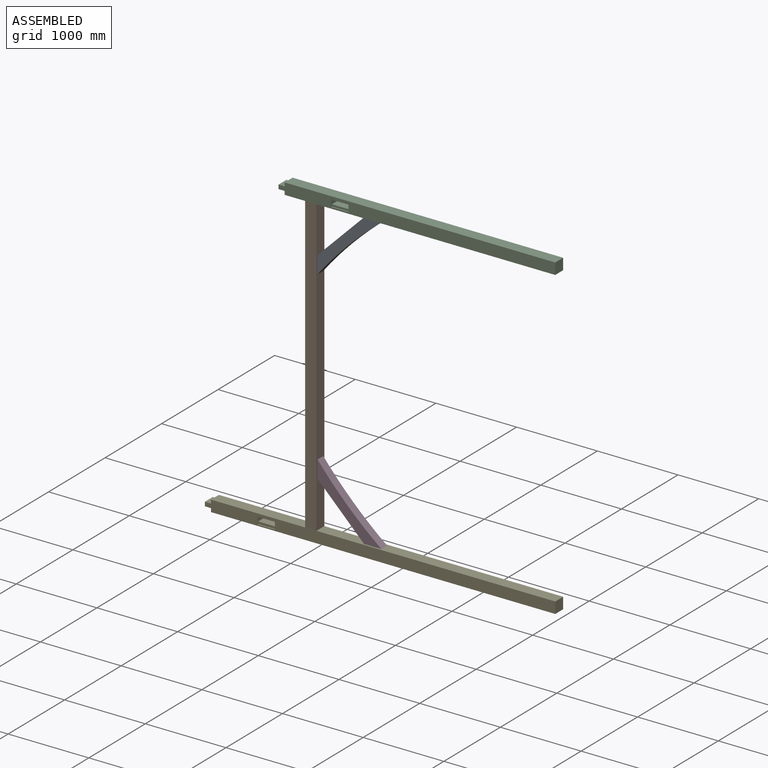
[diagram: assembled view]
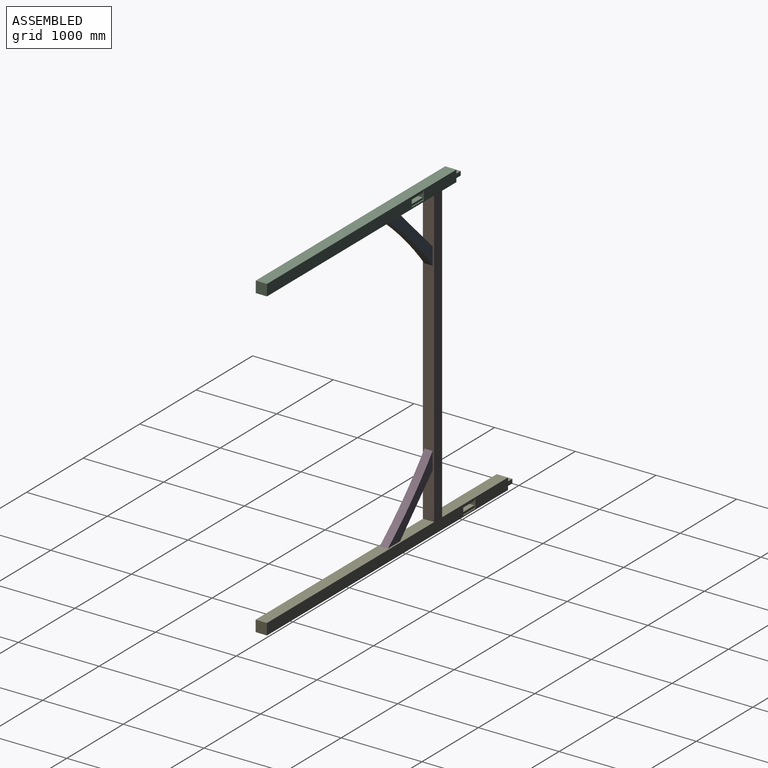
[diagram: assembled view, second angle]
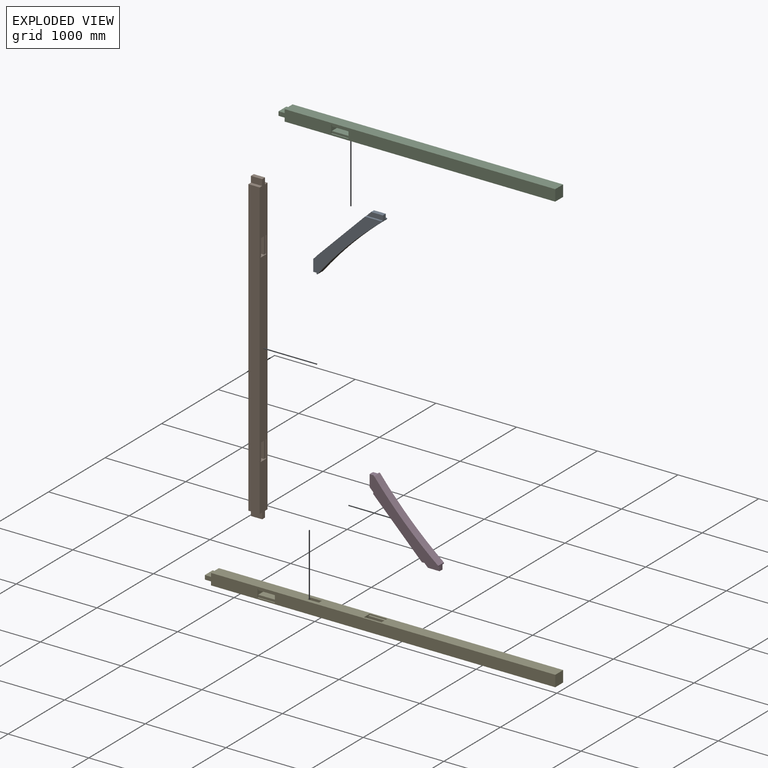
[diagram: exploded view]
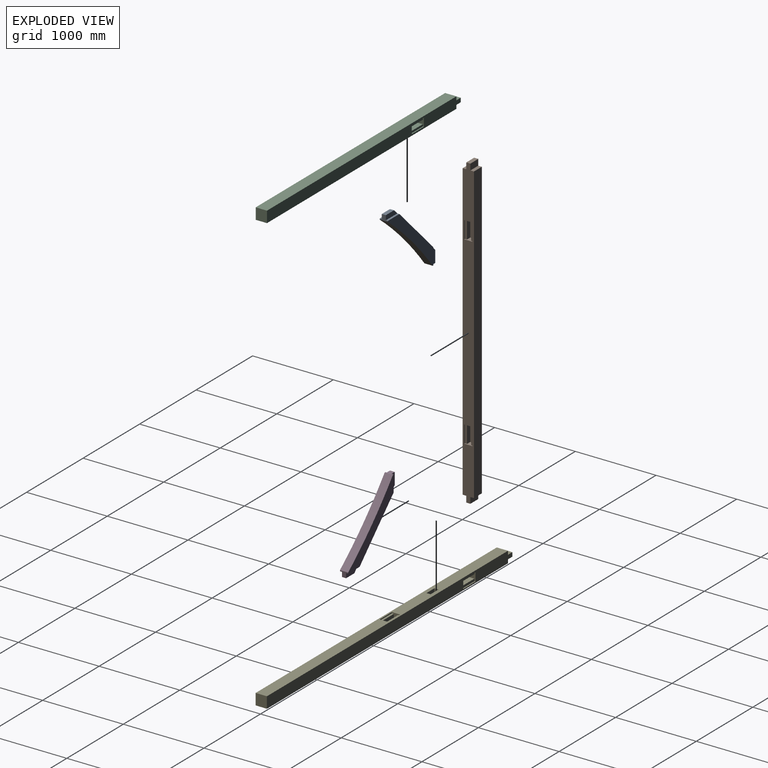
[diagram: exploded view, second angle]
ASSEMBLY  parts=5 mates=4
PART A: 16 faces, bbox 1218.6x101.6x152.4 mm
  f0: plane 101.6x49.39mm, normal (-0.71,0,-0.71), area 4193.5mm2, adj f1,f4,f5,f7,f10,f11,f12,f13
  f1: plane 1137.74x152.4mm, normal (0,-1,0), area 129225.2mm2, adj f0,f2,f3,f5,f12,f14
  f2: plane 1012.54x101.6mm, normal (0,0,1), area 95386mm2, adj f1,f4,f6,f7,f8,f9,f10,f11
  f3: plane 101.6x49.39mm, normal (0.71,0,-0.71), area 4704.8mm2, adj f1,f4,f5,f6,f8,f9,f14,f15
  f4: plane 1137.74x152.4mm, normal (0,1,0), area 129225.2mm2, adj f0,f2,f3,f5,f8,f10
  f5: cylinder r=4994.47mm len=1119.78mm, axis (0,1,0), area 114009.2mm2, adj f0,f1,f3,f4
  f6: plane 103.01x103.01mm, normal (0.71,0,0.71), area 8703.5mm2, adj f2,f3,f9,f15
  f7: plane 103.01x103.01mm, normal (-0.71,0,0.71), area 7400.3mm2, adj f0,f2,f11,f13
  f8: plane 143.42x143.42mm, normal (0.71,0,0.71), area 5151.8mm2, adj f2,f3,f4,f9
  f9: plane 183.83x143.42mm, normal (0,1,0), area 9958.5mm2, adj f2,f3,f6,f8
  f10: plane 143.42x143.42mm, normal (-0.71,0,0.71), area 5151.8mm2, adj f0,f2,f4,f11
  f11: plane 183.83x143.42mm, normal (0,1,0), area 9958.5mm2, adj f0,f2,f7,f10
  f12: plane 143.42x143.42mm, normal (-0.71,0,0.71), area 5151.8mm2, adj f0,f1,f2,f13
  f13: plane 183.83x143.42mm, normal (0,-1,0), area 9958.5mm2, adj f0,f2,f7,f12
  f14: plane 143.42x143.42mm, normal (0.71,0,0.71), area 3337.3mm2, adj f1,f2,f3,f15
  f15: plane 183.83x143.42mm, normal (0,-1,0), area 9958.5mm2, adj f2,f3,f6,f14
PART B: 32 faces, bbox 3810x139.7x139.7 mm
  f0: plane 139.7x76.2mm, normal (0,0,-1), area 10645.1mm2, adj f1,f19,f20,f21
  f1: plane 139.7x50.8mm, normal (1,0,0), area 7096.8mm2, adj f0,f2,f20,f21
  f2: plane 139.7x76.2mm, normal (0,0,1), area 10645.1mm2, adj f1,f3,f20,f21
  f3: plane 139.7x44.45mm, normal (1,0,0), area 6209.7mm2, adj f2,f4,f20,f21
  f4: plane 3657.6x139.7mm, normal (0,0,1), area 510966.7mm2, adj f3,f5,f20,f21
  f5: plane 139.7x44.45mm, normal (-1,0,0), area 6209.7mm2, adj f4,f6,f20,f21
  f6: plane 139.7x76.2mm, normal (0,0,1), area 10645.1mm2, adj f5,f7,f20,f21
  f7: plane 139.7x50.8mm, normal (-1,0,0), area 7096.8mm2, adj f6,f8,f20,f21
  f8: plane 139.7x76.2mm, normal (0,0,-1), area 10645.1mm2, adj f7,f9,f20,f21
  f9: plane 139.7x44.45mm, normal (-1,0,0), area 6209.7mm2, adj f8,f10,f20,f21
  f10: plane 3657.6x139.7mm, normal (0,0,-1), area 510966.7mm2, adj f9,f19,f20,f21
  f11: plane 101.6x69.85mm, normal (1,0,0), area 4193.5mm2, adj f12,f17,f20,f22,f28,f29,f30,f31
  f12: plane 215.52x12.7mm, normal (0,0,-1), area 2737.1mm2, adj f11,f13,f20,f29
  f13: plane 101.6x69.85mm, normal (-1,0,0), area 4193.5mm2, adj f12,f17,f20,f22,f28,f29,f30,f31
  f14: plane 101.6x69.85mm, normal (1,0,0), area 4193.5mm2, adj f15,f18,f20,f23,f24,f25,f26,f27
  f15: plane 215.52x12.7mm, normal (0,0,-1), area 2737.1mm2, adj f14,f16,f20,f25
  f16: plane 101.6x69.85mm, normal (-1,0,0), area 4193.5mm2, adj f15,f18,f20,f23,f24,f25,f26,f27
  f17: plane 215.52x12.7mm, normal (0,0,1), area 2737.1mm2, adj f11,f13,f20,f31
  f18: plane 215.52x12.7mm, normal (0,0,1), area 2737.1mm2, adj f14,f16,f20,f27
  f19: plane 139.7x44.45mm, normal (1,0,0), area 6209.7mm2, adj f0,f10,f20,f21
  f20: plane 3810x139.7mm, normal (0,-1,0), area 474915.2mm2, adj f0,f1,f2,f3,f4,f5,f6,f7
  f21: plane 3810x139.7mm, normal (0,1,0), area 518708.6mm2, adj f0,f1,f2,f3,f4,f5,f6,f7
  f22: plane 215.52x50.8mm, normal (0,-1,0), area 10948.4mm2, adj f11,f13,f28,f30
  f23: plane 215.52x50.8mm, normal (0,-1,0), area 10948.4mm2, adj f14,f16,f24,f26
  f24: plane 215.52x57.15mm, normal (0,0,-1), area 12316.9mm2, adj f14,f16,f23,f25
  f25: plane 215.52x25.4mm, normal (0,-1,0), area 5474.2mm2, adj f14,f15,f16,f24
  f26: plane 215.52x57.15mm, normal (0,0,1), area 12316.9mm2, adj f14,f16,f23,f27
  f27: plane 215.52x25.4mm, normal (0,-1,0), area 5474.2mm2, adj f14,f16,f18,f26
  f28: plane 215.52x57.15mm, normal (0,0,-1), area 12316.9mm2, adj f11,f13,f22,f29
  f29: plane 215.52x25.4mm, normal (0,-1,0), area 5474.2mm2, adj f11,f12,f13,f28
  f30: plane 215.52x57.15mm, normal (0,0,1), area 12316.9mm2, adj f11,f13,f22,f31
  f31: plane 215.52x25.4mm, normal (0,-1,0), area 5474.2mm2, adj f11,f13,f17,f30
PART C: 36 faces, bbox 3429x139.7x139.7 mm
  f0: plane 3429x139.7mm, normal (0,1,0), area 450360.4mm2, adj f1,f2,f4,f5,f6,f7,f8,f9
  f1: plane 3352.8x139.7mm, normal (0,0,-1), area 439392.7mm2, adj f0,f7,f8,f13,f14,f15,f16,f17
  f2: plane 139.7x101.6mm, normal (1,0,0), area 8387.1mm2, adj f0,f3,f12,f13,f28,f29,f30,f31
  f3: plane 215.52x12.7mm, normal (0,0,-1), area 2737.1mm2, adj f2,f4,f13,f29
  f4: plane 139.7x101.6mm, normal (-1,0,0), area 8387.1mm2, adj f0,f3,f12,f13,f28,f29,f30,f31
  f5: plane 139.7x50.8mm, normal (-1,0,0), area 7096.8mm2, adj f0,f6,f11,f13
  f6: plane 139.7x76.2mm, normal (0,0,-1), area 10645.1mm2, adj f0,f5,f7,f13
  f7: plane 139.7x44.45mm, normal (-1,0,0), area 6209.7mm2, adj f0,f1,f6,f13
  f8: plane 139.7x139.7mm, normal (1,0,0), area 19516.1mm2, adj f0,f1,f9,f13
  f9: plane 3352.8x139.7mm, normal (0,0,1), area 468386.2mm2, adj f0,f8,f10,f13
  f10: plane 139.7x44.45mm, normal (-1,0,0), area 6209.7mm2, adj f0,f9,f11,f13
  f11: plane 139.7x76.2mm, normal (0,0,1), area 10645.1mm2, adj f0,f5,f10,f13
  f12: plane 215.52x12.7mm, normal (0,0,1), area 2737.1mm2, adj f2,f4,f13,f31
  f13: plane 3429x139.7mm, normal (0,-1,0), area 450360.4mm2, adj f1,f2,f3,f4,f5,f6,f7,f8
  f14: plane 76.2x50.8mm, normal (-1,0,0), area 3871mm2, adj f1,f15,f17,f18
  f15: plane 139.7x76.2mm, normal (0,1,0), area 10645.1mm2, adj f1,f14,f16,f18
  f16: plane 76.2x50.8mm, normal (1,0,0), area 3871mm2, adj f1,f15,f17,f18
  f17: plane 139.7x76.2mm, normal (0,-1,0), area 10645.1mm2, adj f1,f14,f16,f18
  f18: plane 139.7x50.8mm, normal (0,0,-1), area 7096.8mm2, adj f14,f15,f16,f17
  f19: plane 215.52x57.15mm, normal (0,-1,0), area 12316.9mm2, adj f20,f22,f23,f27
  f20: plane 101.6x69.85mm, normal (-1,0,0), area 4193.5mm2, adj f1,f19,f21,f23,f24,f25,f26,f27
  f21: plane 215.52x57.15mm, normal (0,1,0), area 12316.9mm2, adj f20,f22,f23,f25
  f22: plane 101.6x69.85mm, normal (1,0,0), area 4193.5mm2, adj f1,f19,f21,f23,f24,f25,f26,f27
  f23: plane 215.52x50.8mm, normal (0,0,-1), area 10948.4mm2, adj f19,f20,f21,f22
  f24: plane 215.52x12.7mm, normal (0,1,0), area 2737.1mm2, adj f1,f20,f22,f25
  f25: plane 215.52x25.4mm, normal (0,0,-1), area 5474.2mm2, adj f20,f21,f22,f24
  f26: plane 215.52x12.7mm, normal (0,-1,0), area 2737.1mm2, adj f1,f20,f22,f27
  f27: plane 215.52x25.4mm, normal (0,0,-1), area 5474.2mm2, adj f19,f20,f22,f26
  f28: plane 215.52x114.3mm, normal (0,0,-1), area 24633.8mm2, adj f2,f4,f29,f35
  f29: plane 215.52x25.4mm, normal (0,-1,0), area 5474.2mm2, adj f2,f3,f4,f28
  f30: plane 215.52x114.3mm, normal (0,0,1), area 24633.8mm2, adj f2,f4,f31,f33
  f31: plane 215.52x25.4mm, normal (0,-1,0), area 5474.2mm2, adj f2,f4,f12,f30
  f32: plane 215.52x12.7mm, normal (0,0,1), area 2737.1mm2, adj f0,f2,f4,f33
  f33: plane 215.52x25.4mm, normal (0,1,0), area 5474.2mm2, adj f2,f4,f30,f32
  f34: plane 215.52x12.7mm, normal (0,0,-1), area 2737.1mm2, adj f0,f2,f4,f35
  f35: plane 215.52x25.4mm, normal (0,1,0), area 5474.2mm2, adj f2,f4,f28,f34
PART D: same geometry as A
PART E: 36 faces, bbox 4343.4x139.7x139.7 mm
  f0: plane 4343.4x139.7mm, normal (0,1,0), area 577785.7mm2, adj f1,f2,f4,f5,f6,f7,f8,f9
  f1: plane 139.7x103.07mm, normal (1,0,0), area 8424.4mm2, adj f0,f3,f12,f13,f28,f29,f30,f31
  f2: plane 4267.2x139.7mm, normal (0,0,-1), area 567134.3mm2, adj f0,f7,f8,f13,f15,f17,f19,f20
  f3: plane 215.52x12.7mm, normal (0,0,-1), area 2737.1mm2, adj f1,f4,f13,f31
  f4: plane 139.7x103.07mm, normal (-1,0,0), area 8424.4mm2, adj f0,f3,f12,f13,f28,f29,f30,f31
  f5: plane 139.7x50.8mm, normal (-1,0,0), area 7096.8mm2, adj f0,f6,f11,f13
  f6: plane 139.7x76.2mm, normal (0,0,-1), area 10645.1mm2, adj f0,f5,f7,f13
  f7: plane 139.7x44.45mm, normal (-1,0,0), area 6209.7mm2, adj f0,f2,f6,f13
  f8: plane 139.7x139.7mm, normal (1,0,0), area 19516.1mm2, adj f0,f2,f9,f13
  f9: plane 4267.2x139.7mm, normal (0,0,1), area 596127.8mm2, adj f0,f8,f10,f13
  f10: plane 139.7x44.45mm, normal (-1,0,0), area 6209.7mm2, adj f0,f9,f11,f13
  f11: plane 139.7x76.2mm, normal (0,0,1), area 10645.1mm2, adj f0,f5,f10,f13
  f12: plane 215.52x12.7mm, normal (0,0,1), area 2737.1mm2, adj f1,f4,f13,f29
  f13: plane 4343.4x139.7mm, normal (0,-1,0), area 577785.7mm2, adj f1,f2,f3,f4,f5,f6,f7,f8
  f14: plane 215.52x63.5mm, normal (0,-1,0), area 13685.5mm2, adj f15,f17,f18,f25
  f15: plane 101.6x76.2mm, normal (-1,0,0), area 4516.1mm2, adj f2,f14,f16,f18,f24,f25,f26,f27
  f16: plane 215.52x63.5mm, normal (0,1,0), area 13685.5mm2, adj f15,f17,f18,f27
  f17: plane 101.6x76.2mm, normal (1,0,0), area 4516.1mm2, adj f2,f14,f16,f18,f24,f25,f26,f27
  f18: plane 215.52x50.8mm, normal (0,0,-1), area 10948.4mm2, adj f14,f15,f16,f17
  f19: plane 76.2x50.8mm, normal (-1,0,0), area 3871mm2, adj f2,f20,f22,f23
  f20: plane 139.7x76.2mm, normal (0,1,0), area 10645.1mm2, adj f2,f19,f21,f23
  f21: plane 76.2x50.8mm, normal (1,0,0), area 3871mm2, adj f2,f20,f22,f23
  f22: plane 139.7x76.2mm, normal (0,-1,0), area 10645.1mm2, adj f2,f19,f21,f23
  f23: plane 139.7x50.8mm, normal (0,0,-1), area 7096.8mm2, adj f19,f20,f21,f22
  f24: plane 215.52x12.7mm, normal (0,-1,0), area 2737.1mm2, adj f2,f15,f17,f25
  f25: plane 215.52x25.4mm, normal (0,0,-1), area 5474.2mm2, adj f14,f15,f17,f24
  f26: plane 215.52x12.7mm, normal (0,1,0), area 2737.1mm2, adj f2,f15,f17,f27
  f27: plane 215.52x25.4mm, normal (0,0,-1), area 5474.2mm2, adj f15,f16,f17,f26
  f28: plane 215.52x114.3mm, normal (0,0,1), area 24633.8mm2, adj f1,f4,f29,f33
  f29: plane 215.52x22.83mm, normal (0,-1,0), area 4919.4mm2, adj f1,f4,f12,f28
  f30: plane 215.52x114.3mm, normal (0,0,-1), area 24633.8mm2, adj f1,f4,f31,f35
  f31: plane 215.52x29.44mm, normal (0,-1,0), area 6345.4mm2, adj f1,f3,f4,f30
  f32: plane 215.52x12.7mm, normal (0,0,1), area 2737.1mm2, adj f0,f1,f4,f33
  f33: plane 215.52x22.83mm, normal (0,1,0), area 4919.4mm2, adj f1,f4,f28,f32
  f34: plane 215.52x12.7mm, normal (0,0,-1), area 2737.1mm2, adj f0,f1,f4,f35
  f35: plane 215.52x29.44mm, normal (0,1,0), area 6345.4mm2, adj f1,f4,f30,f34
PLACE A rot(axis=(-0.38,0,0.92),180deg) t=(-3657.06,-30.16,-1771)mm
PLACE B rot(axis=(-0.58,0.58,0.58),120deg) t=(-4084.89,-49.21,-5216.66)mm
PLACE C t=(-986.09,90.49,-1482.86)mm
PLACE D rot(axis=(0,-1,0),135deg) t=(-3657.06,71.44,-4852.32)mm
PLACE E rot(axis=(1,0,0),180deg) t=(-985.08,-49.21,-5140.46)mm
MATE fastened A.f0 <-> C.f20  axis (1,0,0) through (-3153.4,20.64,-1482.86)mm
MATE fastened B.f1 <-> E.f23  axis (0,0,-1) through (-4015.04,20.64,-5216.66)mm
MATE fastened B.f7 <-> C.f18  axis (0,0,1) through (-4015.04,20.64,-1406.66)mm
MATE fastened D.f0 <-> E.f15  axis (1,0,0) through (-3153.4,20.64,-5140.46)mm
